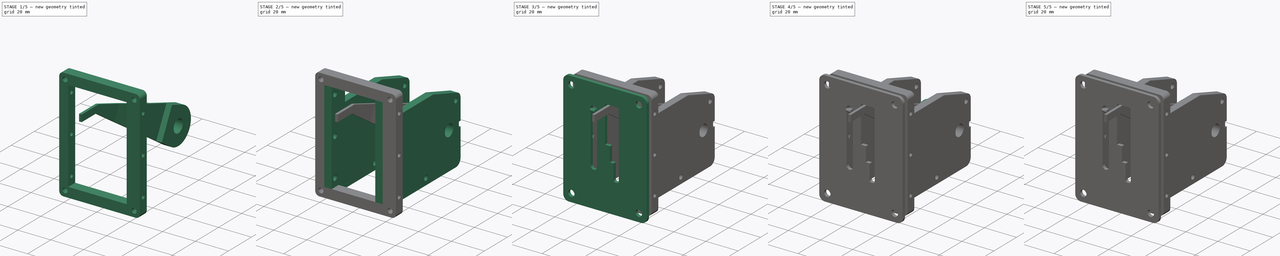
[diagram: build sequence overview — one tinted view per stage of 5, left to right]
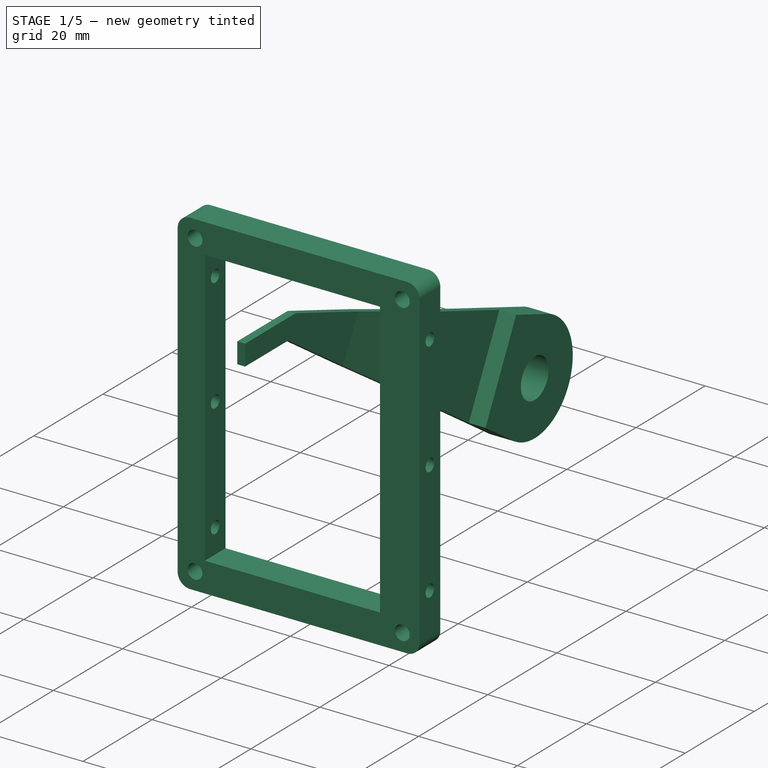
[diagram: stage 1 of 5 — iso view after this stage's code; geometry added in this stage tinted green]
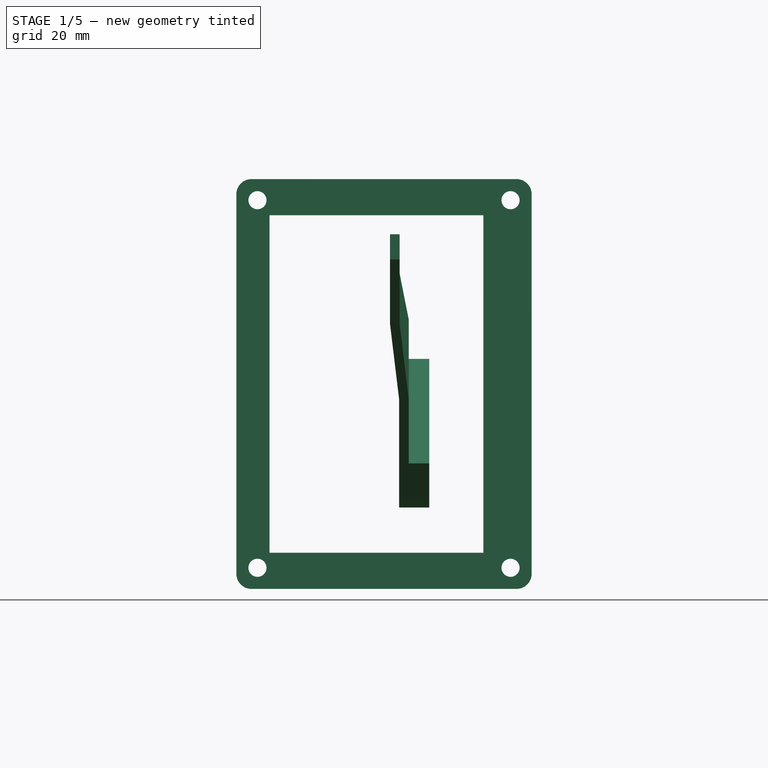
[diagram: stage 1 of 5 — front view after this stage's code; geometry added in this stage tinted green]
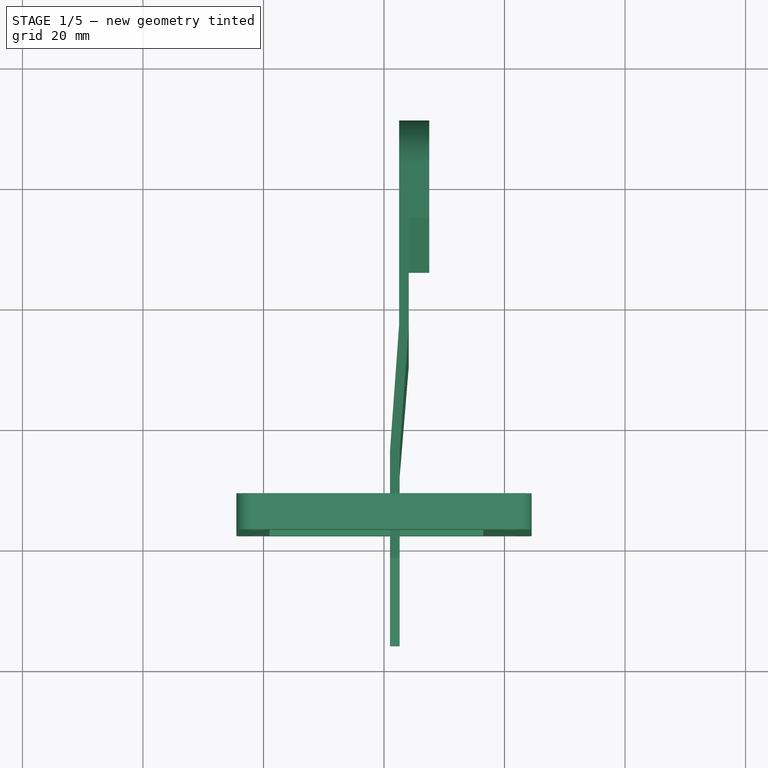
[diagram: stage 1 of 5 — top view after this stage's code; geometry added in this stage tinted green]
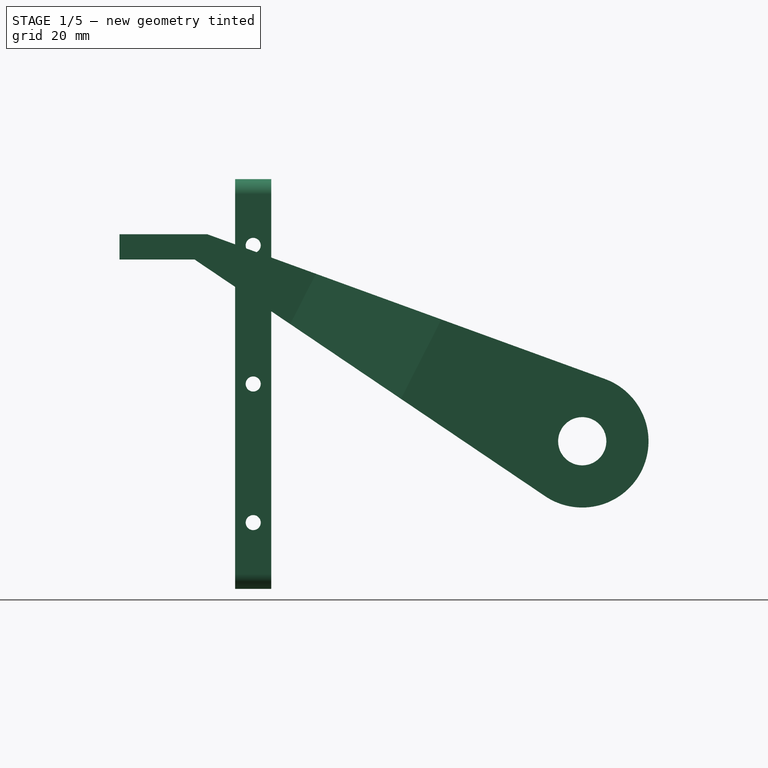
[diagram: stage 1 of 5 — right view after this stage's code; geometry added in this stage tinted green]
FCSTD DOCUMENT  (FreeCAD 0.16R6706 (Git))
Label: flap_assembly
License: All rights reserved
LicenseURL: http://en.wikipedia.org/wiki/All_rights_reserved
objects: Sketcher::SketchObject×17, PartDesign::Pad×13, App::DocumentObjectGroup×8, Part::Part2DObjectPython×5, PartDesign::Pocket×5, Part::Cut×3, Part::MultiFuse×2, Part::MultiCommon×1, Part::Sphere×1
note: 65 computed .brp shape members not serialized (recipe doc carries the construction recipe); baked Part::Feature solids carry a one-line shape summary decoded from their .brp

FEATURE [Sketcher::SketchObject] Sketch001  label="Sketch (lever)"
  Placement = pos=(0,0,0) rot=(0.57735,-0.57735,-0.57735;2.0944rad)
  sketch-geometry (9):
    g0: Circle CenterX=0 CenterY=0 CenterZ=0 NormalX=0 NormalY=0 NormalZ=1 Radius=4
    g1: ArcOfCircle CenterX=0 CenterY=0 CenterZ=0 NormalX=0 NormalY=0 NormalZ=1 Radius=11 StartAngle=1.91986 EndAngle=5.30623
    g2: LineSegment StartX=-3.76222 StartY=10.3366 StartZ=0 EndX=62.1873 EndY=34.3403 EndZ=0
    g3: LineSegment StartX=6.155 StartY=-9.1168 StartZ=0 EndX=64.322 EndY=30.153 EndZ=0
    g4: LineSegment StartX=62.1873 StartY=34.3403 StartZ=0 EndX=76.7873 EndY=34.3403 EndZ=0
    g5: LineSegment StartX=64.322 StartY=30.153 StartZ=0 EndX=76.7873 EndY=30.153 EndZ=0
    g6: LineSegment StartX=76.7873 StartY=30.153 StartZ=0 EndX=76.7873 EndY=34.3403 EndZ=0
    g7: LineSegment [constr] StartX=62.1873 StartY=34.3403 StartZ=0 EndX=64.322 EndY=30.153 EndZ=0
    g8: LineSegment [constr] StartX=0 StartY=0 StartZ=0 EndX=63.2547 EndY=32.2467 EndZ=0
  constraints (25):
    c: Coincident(g0,g-1)
    c: Coincident(g1,g-1)
    c: Coincident(g2,g1)
    c: Coincident(g3,g1)
    c: Coincident(g4,g2)
    c: Coincident(g5,g3)
    c: Coincident(g6,g5)
    c: Coincident(g6,g4)
    c: Parallel(g5,g4)
    c: Perpendicular(g6,g4)
    c: Radius(g0) = 4
    c: Radius(g1) = 11
    c: Tangent(g2,g1)
    c: Tangent(g3,g1)
    c: Angle(g2,g4) = 2.79253
    c: Coincident(g7,g2)
    c: Coincident(g7,g3)
    c: Coincident(g8,g-1)
    c: PointOnObject(g8,g7)
    c: Perpendicular(g7,g8)
    c: Symmetric(g2,g3,g8)
    c: Distance(g4) = 14.6
    c: Distance(g8) = 71
    c: Distance(g7) = 4.7
    c: Horizontal(g4)
FEATURE [PartDesign::Pad] Pad002  label="Pad (lever)"
  Length = 6.5
  Length2 = 100
  Placement = pos=(0,0,0) rot=(0.57735,-0.57735,-0.57735;2.0944rad)
  Reversed = true
  Sketch = -> Sketch001
  Type = 0
FEATURE [Sketcher::SketchObject] Sketch003  label="Sketch (lever cut)"
  Placement = pos=(0,0,0) rot=(-1,0,0;0.471239rad)
  sketch-geometry (16):
    g0: LineSegment StartX=1.5 StartY=18.7893 StartZ=0 EndX=1.5 EndY=-30 EndZ=0
    g1: LineSegment StartX=1.5 StartY=-30 StartZ=0 EndX=0 EndY=-52 EndZ=0
    g2: LineSegment StartX=0 StartY=-52 StartZ=0 EndX=0 EndY=-87.0787 EndZ=0
    g3: LineSegment StartX=0 StartY=-87.0787 StartZ=0 EndX=1.6 EndY=-87.0787 EndZ=0
    g4: LineSegment StartX=1.6 StartY=-87.0787 StartZ=0 EndX=1.6 EndY=-52 EndZ=0
    g5: LineSegment StartX=1.6 StartY=-52 StartZ=0 EndX=3.1 EndY=-30 EndZ=0
    g6: LineSegment StartX=3.1 StartY=-30 StartZ=0 EndX=3.1 EndY=-11 EndZ=0
    g7: LineSegment StartX=3.1 StartY=-11 StartZ=0 EndX=6.5 EndY=-11 EndZ=0
    g8: LineSegment StartX=6.5 StartY=-11 StartZ=0 EndX=6.5 EndY=18.7893 EndZ=0
    g9: LineSegment StartX=6.5 StartY=18.7893 StartZ=0 EndX=1.5 EndY=18.7893 EndZ=0
    g10: LineSegment StartX=-8.15037 StartY=27.8276 StartZ=0 EndX=17.0213 EndY=27.8276 EndZ=0
    g11: LineSegment StartX=17.0213 StartY=27.8276 StartZ=0 EndX=17.0213 EndY=-93.0251 EndZ=0
    g12: LineSegment StartX=17.0213 StartY=-93.0251 StartZ=0 EndX=-8.15037 EndY=-93.0251 EndZ=0
    g13: LineSegment StartX=-8.15037 StartY=-93.0251 StartZ=0 EndX=-8.15037 EndY=27.8276 EndZ=0
    g14: LineSegment [constr] StartX=1.5 StartY=-30 StartZ=0 EndX=3.1 EndY=-30 EndZ=0
    g15: LineSegment [constr] StartX=0 StartY=-52 StartZ=0 EndX=1.6 EndY=-52 EndZ=0
  constraints (41):
    c: Vertical(g0)
    c: DistanceX(g-1,g0) = 1.5
    c: Coincident(g1,g0)
    c: Coincident(g2,g1)
    c: Vertical(g2)
    c: Coincident(g3,g2)
    c: Horizontal(g3)
    c: Coincident(g4,g3)
    c: Vertical(g4)
    c: Coincident(g5,g4)
    c: Coincident(g6,g5)
    c: Vertical(g6)
    c: Coincident(g7,g6)
    c: Coincident(g8,g7)
    c: Vertical(g8)
    c: Coincident(g9,g8)
    c: Coincident(g9,g0)
    c: Horizontal(g9)
    c: Coincident(g10,g11)
    c: Coincident(g11,g12)
    c: Coincident(g12,g13)
    c: Coincident(g13,g10)
    c: Horizontal(g10)
    c: Horizontal(g12)
    c: Vertical(g11)
    c: Vertical(g13)
    c: Horizontal(g7)
    c: DistanceY(g0,g-1) = 30
    c: DistanceY(g1,g-1) = 52
    c: DistanceX(g3,g3) = 1.6
    c: PointOnObject(g2,g-2)
    c: Coincident(g14,g0)
    c: Coincident(g14,g5)
    c: Coincident(g15,g1)
    c: Coincident(g15,g4)
    c: Horizontal(g14)
    c: Horizontal(g15)
    c: Equal(g3,g15)
    c: Equal(g15,g14)
    c: DistanceY(g7,g-1) = 11
    c: DistanceX(g9,g9) = 5
FEATURE [PartDesign::Pad] Pad004  label="Pad (lever cut)"
  Length = 15
  Length2 = 15
  Placement = pos=(0,0,0) rot=(-1,0,0;0.471239rad)
  Sketch = -> Sketch003
  Type = 4
FEATURE [Part::Cut] Cut  label="Cut (lever)"
  Base = -> Pad002
  Placement = pos=(1,0,0) rot=(0,0,1;0rad)
  Tool = -> Pad004
FEATURE [Part::Part2DObjectPython] Clone2D001  label="Export Sketch (left bracket)"  # Draft 2D object (typed FeaturePython)
  Objects = -> [Sketch]
  Placement = pos=(-19,0,0) rot=(0,0,1;0rad)
  Scale = (1,1,1)
FEATURE [Sketcher::SketchObject] Sketch007  label="Sketch (frame bracket)"
  Placement = pos=(0,-57.6,0) rot=(1,0,0;1.5708rad)
  expr: Placement.Base.y = -62 + 4.4
  sketch-geometry (20):
    g0: LineSegment StartX=-22 StartY=43.5 StartZ=0 EndX=22 EndY=43.5 EndZ=0
    g1: LineSegment StartX=24.5 StartY=41 StartZ=0 EndX=24.5 EndY=-22 EndZ=0
    g2: LineSegment StartX=22 StartY=-24.5 StartZ=0 EndX=-22 EndY=-24.5 EndZ=0
    g3: LineSegment StartX=-24.5 StartY=-22 StartZ=0 EndX=-24.5 EndY=41 EndZ=0
    g4: ArcOfCircle CenterX=22 CenterY=41 CenterZ=0 NormalX=0 NormalY=0 NormalZ=1 Radius=2.5 StartAngle=0 EndAngle=1.5708
    g5: ArcOfCircle CenterX=-22 CenterY=41 CenterZ=0 NormalX=0 NormalY=0 NormalZ=1 Radius=2.5 StartAngle=1.5708 EndAngle=3.14159
    g6: ArcOfCircle CenterX=-22 CenterY=-22 CenterZ=0 NormalX=0 NormalY=0 NormalZ=1 Radius=2.5 StartAngle=3.14159 EndAngle=4.71239
    g7: ArcOfCircle CenterX=22 CenterY=-22 CenterZ=0 NormalX=0 NormalY=0 NormalZ=1 Radius=2.5 StartAngle=4.71239 EndAngle=6.28319
    g8: Circle CenterX=-21 CenterY=40 CenterZ=0 NormalX=0 NormalY=0 NormalZ=1 Radius=1.5
    g9: Circle CenterX=21 CenterY=40 CenterZ=0 NormalX=0 NormalY=0 NormalZ=1 Radius=1.5
    g10: Circle CenterX=21 CenterY=-21 CenterZ=0 NormalX=0 NormalY=0 NormalZ=1 Radius=1.5
    g11: Circle CenterX=-21 CenterY=-21 CenterZ=0 NormalX=0 NormalY=0 NormalZ=1 Radius=1.5
    g12: LineSegment [constr] StartX=-21 StartY=40 StartZ=0 EndX=-21 EndY=-21 EndZ=0
    g13: LineSegment [constr] StartX=-21 StartY=-21 StartZ=0 EndX=21 EndY=-21 EndZ=0
    g14: LineSegment [constr] StartX=21 StartY=-21 StartZ=0 EndX=21 EndY=40 EndZ=0
    g15: LineSegment [constr] StartX=21 StartY=40 StartZ=0 EndX=-21 EndY=40 EndZ=0
    g16: LineSegment StartX=-19 StartY=37.5 StartZ=0 EndX=16.5 EndY=37.5 EndZ=0
    g17: LineSegment StartX=16.5 StartY=37.5 StartZ=0 EndX=16.5 EndY=-18.5 EndZ=0
    g18: LineSegment StartX=16.5 StartY=-18.5 StartZ=0 EndX=-19 EndY=-18.5 EndZ=0
    g19: LineSegment StartX=-19 StartY=-18.5 StartZ=0 EndX=-19 EndY=37.5 EndZ=0
  constraints (52):
    c: Horizontal(g0)
    c: Horizontal(g2)
    c: Vertical(g1)
    c: Vertical(g3)
    c: Tangent(g0,g4) = 1.5708
    c: Tangent(g1,g4) = 1.5708
    c: Tangent(g0,g5) = 1.5708
    c: Tangent(g3,g5) = 1.5708
    c: Tangent(g2,g6) = 1.5708
    c: Tangent(g3,g6) = 1.5708
    c: Tangent(g2,g7) = 1.5708
    c: Tangent(g1,g7) = 1.5708
    c: Equal(g7,g6)
    c: Equal(g6,g5)
    c: Equal(g5,g4)
    c: Radius(g4) = 2.5
    c: Radius(g8) = 1.5
    c: Equal(g8,g9)
    c: Equal(g8,g10)
    c: Equal(g8,g11)
    c: Coincident(g12,g8)
    c: Coincident(g12,g11)
    c: Vertical(g12)
    c: Coincident(g13,g11)
    c: Coincident(g13,g10)
    c: Horizontal(g13)
    c: Coincident(g14,g10)
    c: Coincident(g14,g9)
    c: Vertical(g14)
    c: Coincident(g15,g9)
    c: Coincident(g15,g8)
    c: Horizontal(g15)
    c: DistanceY(g8,g0) = 3.5
    c: DistanceX(g3,g8) = 3.5
    c: DistanceY(g2,g11) = 3.5
    c: DistanceX(g10,g1) = 3.5
    c: DistanceX(g11,g-1) = 21
    c: DistanceY(g10,g-1) = 21
    c: DistanceX(g15,g15) = 42
    c: DistanceY(g14,g14) = 61
    c: Coincident(g16,g17)
    c: Coincident(g17,g18)
    c: Coincident(g18,g19)
    c: Coincident(g19,g16)
    c: Horizontal(g16)
    c: Horizontal(g18)
    c: Vertical(g17)
    c: Vertical(g19)
    c: DistanceY(g2,g17) = 6
    c: DistanceY(g16,g0) = 6
    c: DistanceX(g16,g-1) = 19
    c: DistanceX(g-1,g16) = 16.5
FEATURE [PartDesign::Pad] Pad007  label="Pad (frame bracket)"
  Length = 6
  Length2 = 100
  Placement = pos=(0,-57.6,0) rot=(1,0,0;1.5708rad)
  Reversed = true
  Sketch = -> Sketch007
  Type = 0
FEATURE [Sketcher::SketchObject] Sketch009  label="Sketch (frame bracket holes)"
  Placement = pos=(-24.5,-57.6,0) rot=(0.707107,0,-0.707107;3.14159rad)
  Support = -> Pad007 [Face7]
  sketch-geometry (5):
    g0: Circle CenterX=-32.5 CenterY=-3 CenterZ=0 NormalX=0 NormalY=0 NormalZ=1 Radius=1.25
    g1: Circle CenterX=-9.5 CenterY=-3 CenterZ=0 NormalX=0 NormalY=0 NormalZ=1 Radius=1.25
    g2: Circle CenterX=13.5 CenterY=-3 CenterZ=0 NormalX=0 NormalY=0 NormalZ=1 Radius=1.25
    g3: LineSegment [constr] StartX=-32.5 StartY=-3 StartZ=0 EndX=-9.5 EndY=-3 EndZ=0
    g4: LineSegment [constr] StartX=-9.5 StartY=-3 StartZ=0 EndX=13.5 EndY=-3 EndZ=0
  constraints (13):
    c: DistanceX(g-1,g2) = 13.5
    c: DistanceX(g0,g-1) = 32.5
    c: Equal(g0,g1)
    c: Equal(g1,g2)
    c: Radius(g2) = 1.25
    c: Coincident(g3,g0)
    c: Coincident(g3,g1)
    c: Horizontal(g3)
    c: Coincident(g4,g1)
    c: Horizontal(g4)
    c: Coincident(g2,g4)
    c: Equal(g3,g4)
    c: DistanceY(g2,g-1) = 3
FEATURE [PartDesign::Pocket] Pocket  label="Pocket (frame bracket holes)"
  Length = 5
  Placement = pos=(0,-57.6,0) rot=(1,0,0;1.5708rad)
  Sketch = -> Sketch009
  Type = 1
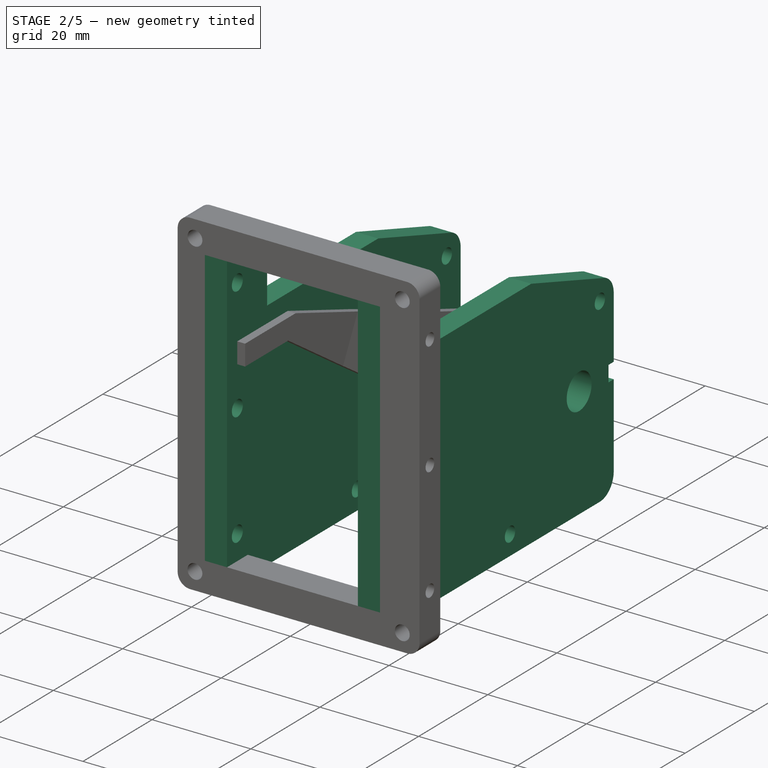
[diagram: stage 2 of 5 — iso view after this stage's code; geometry added in this stage tinted green]
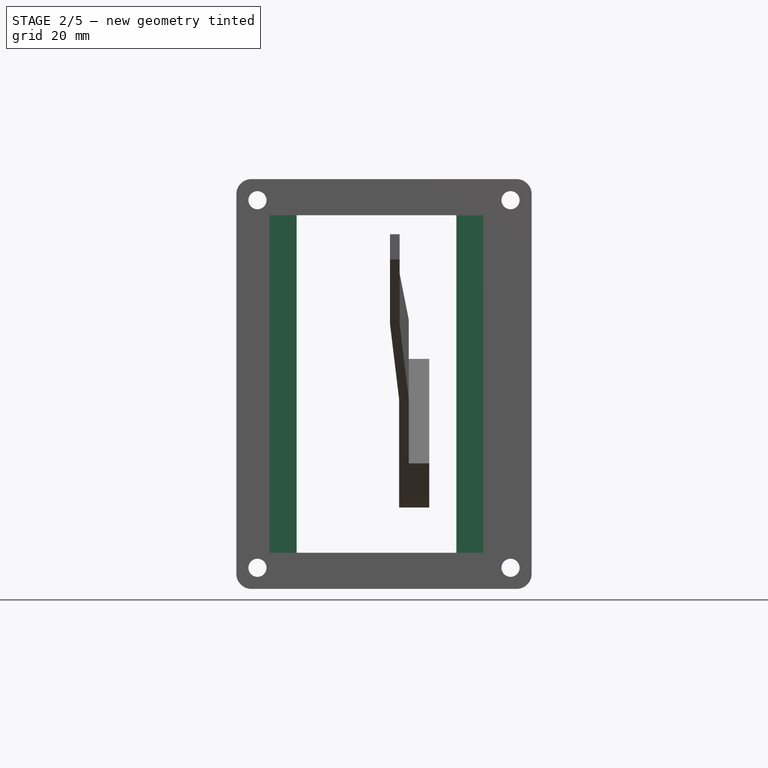
[diagram: stage 2 of 5 — front view after this stage's code; geometry added in this stage tinted green]
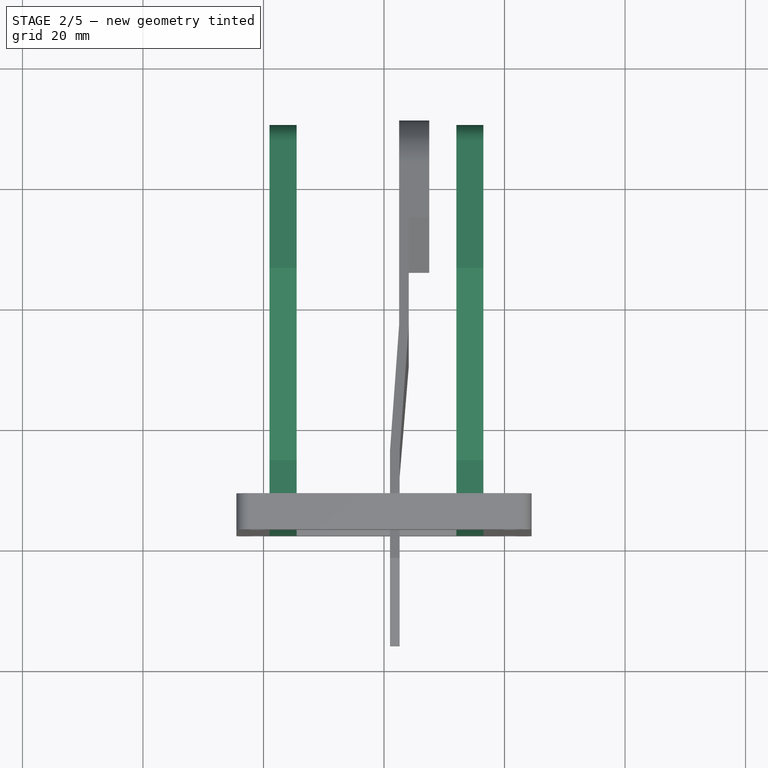
[diagram: stage 2 of 5 — top view after this stage's code; geometry added in this stage tinted green]
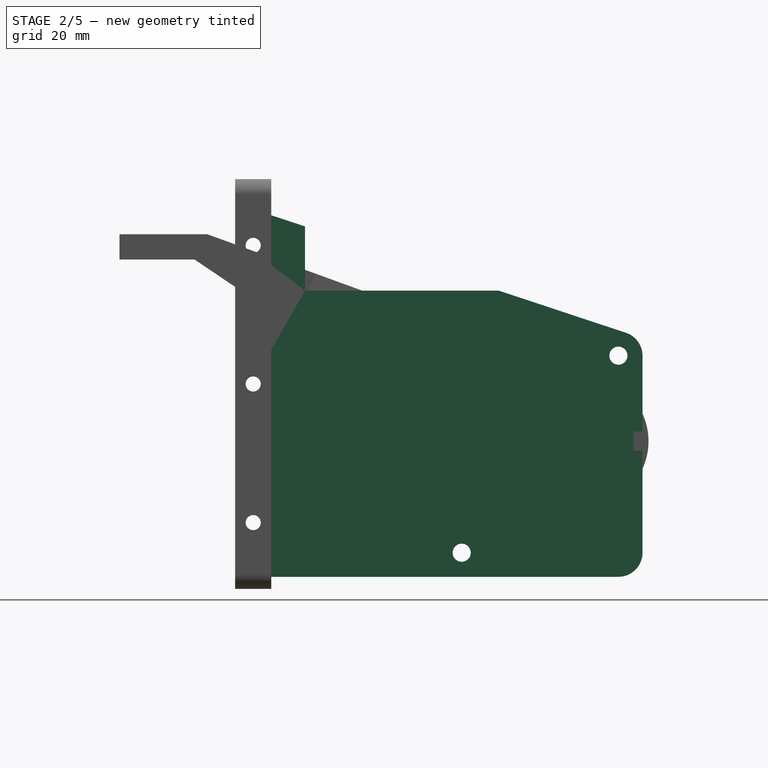
[diagram: stage 2 of 5 — right view after this stage's code; geometry added in this stage tinted green]
FEATURE [Sketcher::SketchObject] Sketch  label="Sketch (left bracket)"
  Placement = pos=(-19,0,0) rot=(0.57735,-0.57735,-0.57735;2.0944rad)
  expr: Constraints[13] = 62 - 4.4
  sketch-geometry (24):
    g0: LineSegment StartX=-10 StartY=14.203 StartZ=0 EndX=-10 EndY=-18.5 EndZ=0
    g1: LineSegment StartX=57.6 StartY=37.5 StartZ=0 EndX=57.6 EndY=-18.5 EndZ=0
    g2: ArcOfCircle CenterX=-6 CenterY=14.203 CenterZ=0 NormalX=0 NormalY=0 NormalZ=1 Radius=4 StartAngle=1.89072 EndAngle=3.14159
    g3: ArcOfCircle CenterX=-6 CenterY=-18.5 CenterZ=0 NormalX=0 NormalY=0 NormalZ=1 Radius=4 StartAngle=3.14159 EndAngle=4.71239
    g4: LineSegment StartX=57.6 StartY=37.5 StartZ=0 EndX=51.6 EndY=37.5 EndZ=0
    g5: LineSegment StartX=57.6 StartY=-18.5 StartZ=0 EndX=51.6 EndY=-18.5 EndZ=0
    g6: Circle CenterX=54.6021 CenterY=32.4976 CenterZ=0 NormalX=0 NormalY=0 NormalZ=1 Radius=1.6
    g7: Circle CenterX=54.6 CenterY=-13.4989 CenterZ=0 NormalX=0 NormalY=0 NormalZ=1 Radius=1.6
    g8: Circle CenterX=54.6021 CenterY=9.49937 CenterZ=0 NormalX=0 NormalY=0 NormalZ=1 Radius=1.6
    g9: LineSegment [constr] StartX=51.6002 StartY=37.4976 StartZ=0 EndX=54.6021 EndY=32.4976 EndZ=0
    g10: LineSegment [constr] StartX=54.6021 StartY=32.4976 StartZ=0 EndX=57.6 EndY=37.5 EndZ=0
    g11: LineSegment [constr] StartX=51.6 StartY=-18.5 StartZ=0 EndX=54.6 EndY=-13.4989 EndZ=0
    g12: LineSegment [constr] StartX=54.6 StartY=-13.4989 StartZ=0 EndX=57.6 EndY=-18.5 EndZ=0
    g13: LineSegment [constr] StartX=54.6021 StartY=32.4976 StartZ=0 EndX=54.6021 EndY=9.49937 EndZ=0
    g14: LineSegment [constr] StartX=54.6021 StartY=9.49937 StartZ=0 EndX=54.6 EndY=-13.4989 EndZ=0
    g15: Circle CenterX=-6 CenterY=14.203 CenterZ=0 NormalX=0 NormalY=0 NormalZ=1 Radius=1.5
    g16: Circle CenterX=20 CenterY=-18.5 CenterZ=0 NormalX=0 NormalY=0 NormalZ=1 Radius=1.5
    g17: LineSegment StartX=51.6 StartY=-18.5 StartZ=0 EndX=51.6 EndY=-22.5 EndZ=0
    g18: LineSegment StartX=51.6 StartY=-22.5 StartZ=0 EndX=-6 EndY=-22.5 EndZ=0
    g19: LineSegment StartX=46 StartY=35.6447 StartZ=0 EndX=46 EndY=25 EndZ=0
    g20: LineSegment StartX=46 StartY=25 StartZ=0 EndX=13.8705 EndY=25 EndZ=0
    g21: LineSegment StartX=-7.25799 StartY=18 StartZ=0 EndX=13.8705 EndY=25 EndZ=0
    g22: LineSegment StartX=51.6 StartY=37.5 StartZ=0 EndX=46 EndY=35.6447 EndZ=0
    g23: LineSegment [constr] StartX=46 StartY=35.6447 StartZ=0 EndX=13.8705 EndY=25 EndZ=0
  constraints (63):
    c: Vertical(g0)
    c: Vertical(g1)
    c: Tangent(g0,g2) = -1.5708
    c: Tangent(g0,g3) = -1.5708
    c: Equal(g2,g3)
    c: DistanceX(g0,g-1) = 10
    c: DistanceY(g-1,g4) = 37.5
    c: Coincident(g4,g1)
    c: Coincident(g5,g1)
    c: Equal(g5,g4)
    c: DistanceX(g4,g4) = 6
    c: Horizontal(g4)
    c: Radius(g3) = 4
    c: DistanceX(g-1,g1) = 57.6
    c: Equal(g6,g8)
    c: Equal(g8,g7)
    c: Radius(g6) = 1.6
    c: Coincident(g9,g6)
    c: Coincident(g10,g6)
    c: Coincident(g10,g1)
    c: Coincident(g11,g7)
    c: Coincident(g12,g7)
    c: Coincident(g12,g1)
    c: Horizontal(g5)
    c: Coincident(g13,g6)
    c: Coincident(g13,g8)
    c: Vertical(g13)
    c: Coincident(g14,g8)
    c: Coincident(g14,g7)
    c: Equal(g13,g14)
    c: Equal(g10,g9)
    c: Equal(g9,g11)
    c: Equal(g11,g12)
    c: DistanceY(g9,g9) = 5
    c: Coincident(g15,g2)
    c: Radius(g15) = 1.5
    c: Equal(g15,g16)
    c: DistanceX(g-1,g16) = 20
    c: Coincident(g17,g5)
    c: Vertical(g17)
    c: DistanceY(g17,g17) = 4
    c: Coincident(g18,g17)
    c: Coincident(g18,g3)
    c: Horizontal(g18)
    c: Tangent(g18,g3)
    c: DistanceY(g3,g16) = 4
    c: Coincident(g11,g5)
    c: DistanceY(g17,g-1) = 22.5
    c: Vertical(g19)
    c: Coincident(g20,g19)
    c: Horizontal(g20)
    c: DistanceX(g0,g19) = 56
    c: DistanceY(g19,g4) = 12.5
    c: Coincident(g21,g2)
    c: Coincident(g22,g4)
    c: Coincident(g23,g22)
    c: Coincident(g23,g21)
    c: Parallel(g22,g23)
    c: Parallel(g23,g21)
    c: Tangent(g21,g2)
    c: DistanceY(g3,g2) = 40.5
    c: Coincident(g20,g21)
    c: Coincident(g19,g22)
FEATURE [PartDesign::Pad] Pad  label="Pad (left bracket)"
  Length = 4.5
  Length2 = 100
  Placement = pos=(-19,0,0) rot=(0.57735,-0.57735,-0.57735;2.0944rad)
  Reversed = true
  Sketch = -> Sketch
  Type = 0
FEATURE [Part::Part2DObjectPython] Clone2D  label="Clone Sketch (right bracket)"  # Draft 2D object (typed FeaturePython)
  Objects = -> [Sketch]
  Placement = pos=(16.5,0,0) rot=(0.57735,-0.57735,-0.57735;2.0944rad)
  Scale = (1,1,1)
FEATURE [PartDesign::Pad] Pad001  label="Pad (right bracket)"
  Length = 4.5
  Length2 = 100
  Placement = pos=(16.5,0,0) rot=(0.57735,-0.57735,-0.57735;2.0944rad)
  Sketch = -> Clone2D
  Type = 0
FEATURE [Sketcher::SketchObject] Sketch004  label="Sketch (servo)"
  Placement = pos=(-19,0,0) rot=(0.57735,-0.57735,-0.57735;2.0944rad)
  sketch-geometry (10):
    g0: LineSegment StartX=12 StartY=20 StartZ=0 EndX=24 EndY=20 EndZ=0
    g1: LineSegment StartX=24 StartY=20 StartZ=0 EndX=24 EndY=-3 EndZ=0
    g2: LineSegment StartX=24 StartY=-3 StartZ=0 EndX=12 EndY=-3 EndZ=0
    g3: LineSegment StartX=12 StartY=-3 StartZ=0 EndX=12 EndY=20 EndZ=0
    g4: Circle CenterX=18 CenterY=22.5 CenterZ=0 NormalX=0 NormalY=0 NormalZ=1 Radius=0.8
    g5: Circle CenterX=18 CenterY=-5.5 CenterZ=0 NormalX=0 NormalY=0 NormalZ=1 Radius=0.8
    g6: LineSegment [constr] StartX=18 StartY=22.5 StartZ=0 EndX=12 EndY=20 EndZ=0
    g7: LineSegment [constr] StartX=18 StartY=22.5 StartZ=0 EndX=24 EndY=20 EndZ=0
    g8: LineSegment [constr] StartX=12 StartY=-3 StartZ=0 EndX=18 EndY=-5.5 EndZ=0
    g9: LineSegment [constr] StartX=18 StartY=-5.5 StartZ=0 EndX=24 EndY=-3 EndZ=0
  constraints (26):
    c: Coincident(g0,g1)
    c: Coincident(g1,g2)
    c: Coincident(g2,g3)
    c: Coincident(g3,g0)
    c: Horizontal(g0)
    c: Horizontal(g2)
    c: Vertical(g1)
    c: Vertical(g3)
    c: DistanceX(g0,g0) = 12
    c: DistanceY(g1,g1) = 23
    c: Equal(g4,g5)
    c: Radius(g4) = 0.8
    c: DistanceY(g0,g4) = 2.5
    c: DistanceY(g5,g1) = 2.5
    c: Coincident(g6,g4)
    c: Coincident(g6,g0)
    c: Coincident(g7,g4)
    c: Coincident(g7,g0)
    c: Equal(g7,g6)
    c: Coincident(g8,g2)
    c: Coincident(g8,g5)
    c: Coincident(g9,g5)
    c: Coincident(g9,g1)
    c: Equal(g9,g8)
    c: DistanceY(g-1,g0) = 20
    c: DistanceX(g-1,g2) = 12
FEATURE [PartDesign::Pad] Pad005  label="Pad (servo)"
  Length = 4.5
  Length2 = 100
  Placement = pos=(-19,0,0) rot=(0.57735,-0.57735,-0.57735;2.0944rad)
  Reversed = true
  Sketch = -> Sketch004
  Type = 0
FEATURE [Sketcher::SketchObject] Sketch005  label="Sketch (pot)"
  Placement = pos=(16.5,0,0) rot=(0.57735,0.57735,0.57735;2.0944rad)
  sketch-geometry (5):
    g0: Circle CenterX=0 CenterY=0 CenterZ=0 NormalX=0 NormalY=0 NormalZ=1 Radius=3.6
    g1: LineSegment StartX=8.5 StartY=1.6 StartZ=0 EndX=10 EndY=1.6 EndZ=0
    g2: LineSegment StartX=10 StartY=1.6 StartZ=0 EndX=10 EndY=-1.6 EndZ=0
    g3: LineSegment StartX=10 StartY=-1.6 StartZ=0 EndX=8.5 EndY=-1.6 EndZ=0
    g4: LineSegment StartX=8.5 StartY=-1.6 StartZ=0 EndX=8.5 EndY=1.6 EndZ=0
  constraints (14):
    c: Coincident(g0,g-1)
    c: Radius(g0) = 3.6
    c: Coincident(g1,g2)
    c: Coincident(g2,g3)
    c: Coincident(g3,g4)
    c: Coincident(g4,g1)
    c: Horizontal(g1)
    c: Horizontal(g3)
    c: Vertical(g2)
    c: Vertical(g4)
    c: DistanceY(g4,g4) = 3.2
    c: DistanceX(g1,g1) = 1.5
    c: Symmetric(g1,g2,g-1)
    c: DistanceX(g-1,g1) = 8.5
FEATURE [PartDesign::Pad] Pad006  label="Pad (pot)"
  Length = 4.5
  Length2 = 100
  Placement = pos=(16.5,0,0) rot=(0.57735,0.57735,0.57735;2.0944rad)
  Reversed = true
  Sketch = -> Sketch005
  Type = 0
FEATURE [Part::Cut] Cut002  label="Cut (right bracket)"
  Base = -> Pad001
  Tool = -> Pad006
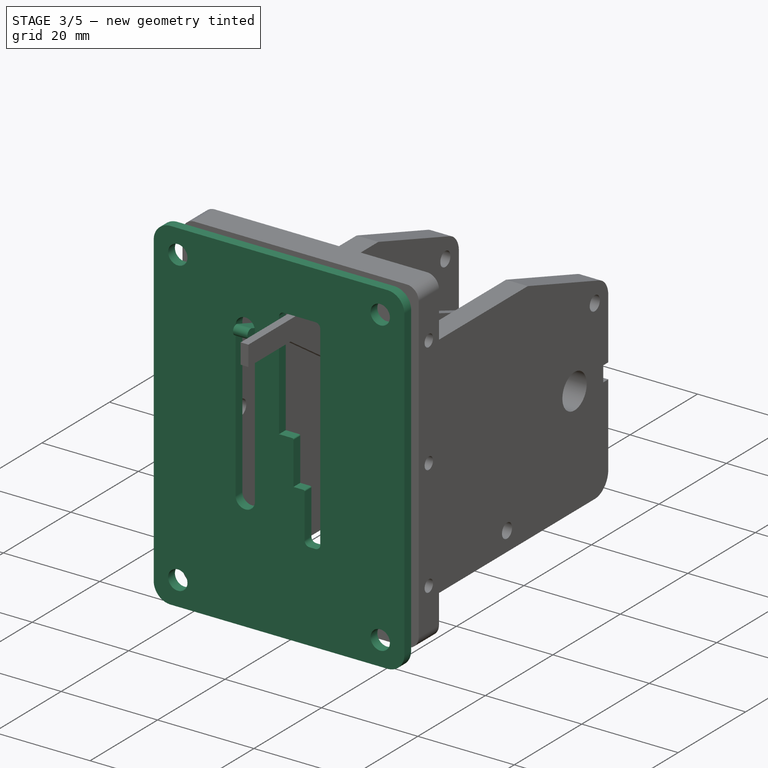
[diagram: stage 3 of 5 — iso view after this stage's code; geometry added in this stage tinted green]
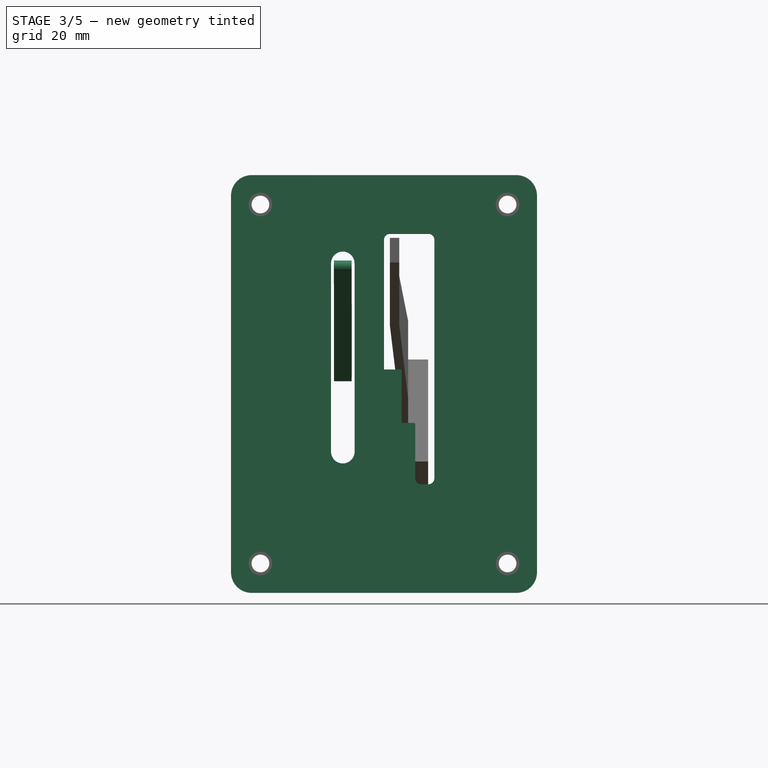
[diagram: stage 3 of 5 — front view after this stage's code; geometry added in this stage tinted green]
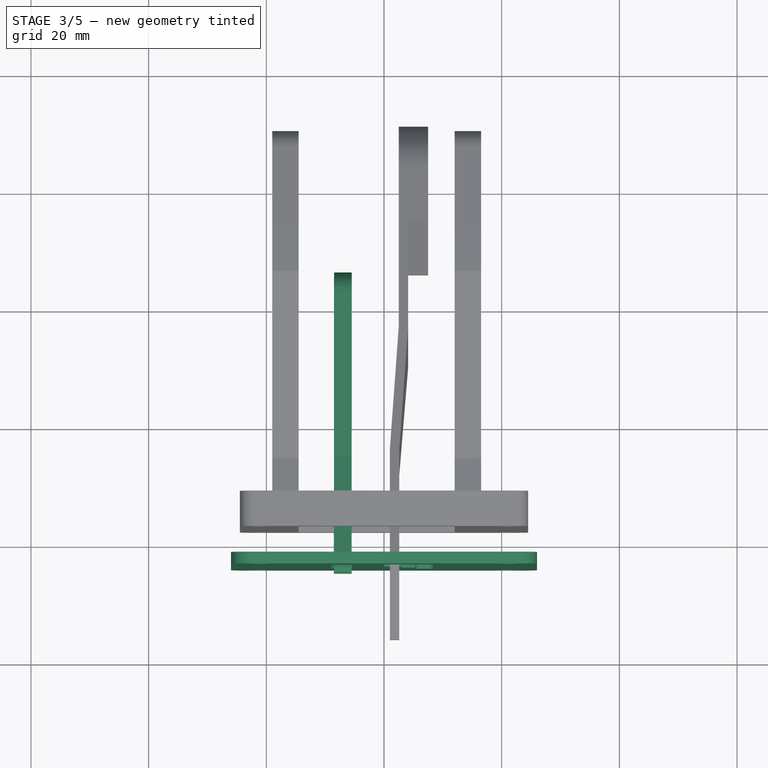
[diagram: stage 3 of 5 — top view after this stage's code; geometry added in this stage tinted green]
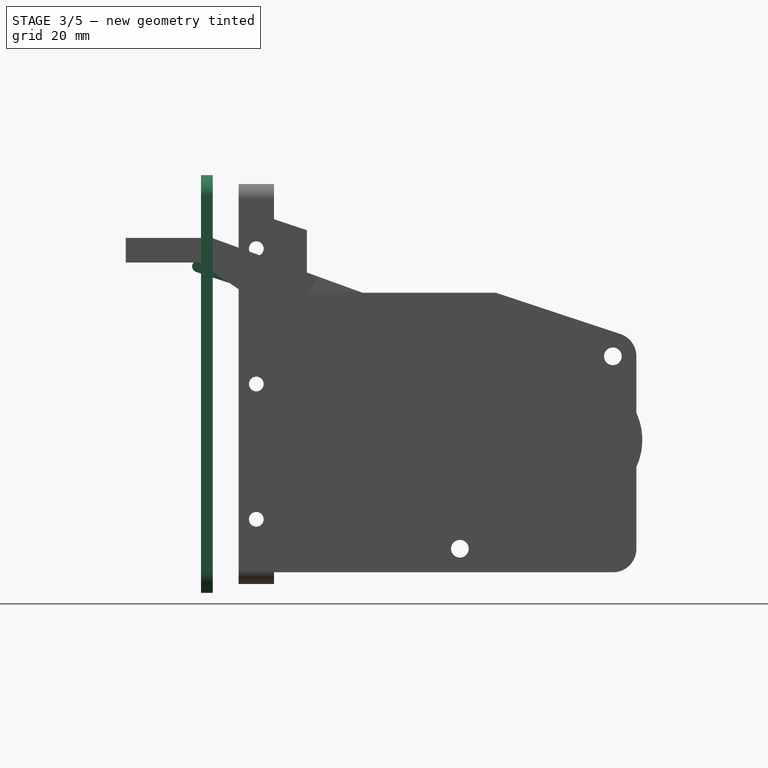
[diagram: stage 3 of 5 — right view after this stage's code; geometry added in this stage tinted green]
FEATURE [Sketcher::SketchObject] Sketch002  label="Sketch (face plate)"
  Placement = pos=(0,-62,0) rot=(1,0,0;1.5708rad)
  sketch-geometry (36):
    g0: LineSegment StartX=-22.5 StartY=45 StartZ=0 EndX=22.5 EndY=45 EndZ=0
    g1: LineSegment StartX=26 StartY=41.5 StartZ=0 EndX=26 EndY=-22.5 EndZ=0
    g2: LineSegment StartX=22.5 StartY=-26 StartZ=0 EndX=-22.5 EndY=-26 EndZ=0
    g3: LineSegment StartX=-26 StartY=-22.5 StartZ=0 EndX=-26 EndY=41.5 EndZ=0
    g4: ArcOfCircle CenterX=22.5 CenterY=41.5 CenterZ=0 NormalX=0 NormalY=0 NormalZ=1 Radius=3.5 StartAngle=0 EndAngle=1.5708
    g5: ArcOfCircle CenterX=-22.5 CenterY=41.5 CenterZ=0 NormalX=0 NormalY=0 NormalZ=1 Radius=3.5 StartAngle=1.5708 EndAngle=3.14159
    g6: ArcOfCircle CenterX=-22.5 CenterY=-22.5 CenterZ=0 NormalX=0 NormalY=0 NormalZ=1 Radius=3.5 StartAngle=3.14159 EndAngle=4.71239
    g7: ArcOfCircle CenterX=22.5 CenterY=-22.5 CenterZ=0 NormalX=0 NormalY=0 NormalZ=1 Radius=3.5 StartAngle=4.71239 EndAngle=6.28319
    g8: ArcOfCircle CenterX=-7 CenterY=30 CenterZ=0 NormalX=0 NormalY=0 NormalZ=1 Radius=2 StartAngle=0 EndAngle=3.14159
    g9: ArcOfCircle CenterX=-7 CenterY=-2 CenterZ=0 NormalX=0 NormalY=0 NormalZ=1 Radius=2 StartAngle=3.14159 EndAngle=6.28319
    g10: LineSegment StartX=-9 StartY=30 StartZ=0 EndX=-9 EndY=-2 EndZ=0
    g11: LineSegment StartX=-5 StartY=30 StartZ=0 EndX=-5 EndY=-2 EndZ=0
    g12: LineSegment [constr] StartX=-7 StartY=30 StartZ=0 EndX=-7 EndY=14 EndZ=0
    g13: LineSegment [constr] StartX=-7 StartY=14 StartZ=0 EndX=-7 EndY=-2 EndZ=0
    g14: LineSegment StartX=1 StartY=35 StartZ=0 EndX=7.555 EndY=35 EndZ=0
    g15: LineSegment StartX=8.555 StartY=34 StartZ=0 EndX=8.555 EndY=-6.542 EndZ=0
    g16: LineSegment StartX=7.555 StartY=-7.542 StartZ=0 EndX=6.313 EndY=-7.542 EndZ=0
    g17: LineSegment StartX=5.313 StartY=-6.542 StartZ=0 EndX=5.313 EndY=2.633 EndZ=0
    g18: LineSegment StartX=5.063 StartY=2.883 StartZ=0 EndX=3 EndY=2.883 EndZ=0
    g19: LineSegment StartX=3 StartY=2.883 StartZ=0 EndX=3 EndY=11.719 EndZ=0
    g20: LineSegment StartX=2.75 StartY=11.969 StartZ=0 EndX=0 EndY=11.969 EndZ=0
    g21: LineSegment StartX=0 StartY=11.969 StartZ=0 EndX=0 EndY=34 EndZ=0
    g22: ArcOfCircle CenterX=7.555 CenterY=34 CenterZ=0 NormalX=0 NormalY=0 NormalZ=1 Radius=1 StartAngle=0 EndAngle=1.5708
    g23: ArcOfCircle CenterX=1 CenterY=34 CenterZ=0 NormalX=0 NormalY=0 NormalZ=1 Radius=1 StartAngle=1.5708 EndAngle=3.14159
    g24: ArcOfCircle CenterX=5.063 CenterY=2.633 CenterZ=0 NormalX=0 NormalY=0 NormalZ=1 Radius=0.25 StartAngle=0 EndAngle=1.5708
    g25: ArcOfCircle CenterX=6.313 CenterY=-6.542 CenterZ=0 NormalX=0 NormalY=0 NormalZ=1 Radius=1 StartAngle=3.14159 EndAngle=4.71239
    g26: ArcOfCircle CenterX=7.555 CenterY=-6.542 CenterZ=0 NormalX=0 NormalY=0 NormalZ=1 Radius=1 StartAngle=4.71239 EndAngle=6.28319
    g27: ArcOfCircle CenterX=2.75 CenterY=11.719 CenterZ=0 NormalX=0 NormalY=0 NormalZ=1 Radius=0.25 StartAngle=0 EndAngle=1.5708
    g28: Circle CenterX=-21 CenterY=40 CenterZ=0 NormalX=0 NormalY=0 NormalZ=1 Radius=2
    g29: Circle CenterX=21 CenterY=40 CenterZ=0 NormalX=0 NormalY=0 NormalZ=1 Radius=2
    g30: Circle CenterX=21 CenterY=-21 CenterZ=0 NormalX=0 NormalY=0 NormalZ=1 Radius=2
    g31: Circle CenterX=-21 CenterY=-21 CenterZ=0 NormalX=0 NormalY=0 NormalZ=1 Radius=2
    g32: LineSegment [constr] StartX=-21 StartY=40 StartZ=0 EndX=-21 EndY=-21 EndZ=0
    g33: LineSegment [constr] StartX=-21 StartY=-21 StartZ=0 EndX=21 EndY=-21 EndZ=0
    g34: LineSegment [constr] StartX=21 StartY=-21 StartZ=0 EndX=21 EndY=40 EndZ=0
    g35: LineSegment [constr] StartX=21 StartY=40 StartZ=0 EndX=-21 EndY=40 EndZ=0
  constraints (91):
    c: Horizontal(g0)
    c: Horizontal(g2)
    c: Vertical(g1)
    c: Vertical(g3)
    c: Tangent(g0,g4) = 1.5708
    c: Tangent(g1,g4) = 1.5708
    c: Tangent(g0,g5) = 1.5708
    c: Tangent(g3,g5) = 1.5708
    c: Tangent(g2,g6) = 1.5708
    c: Tangent(g3,g6) = 1.5708
    c: Tangent(g2,g7) = 1.5708
    c: Tangent(g1,g7) = 1.5708
    c: Equal(g7,g6)
    c: Equal(g6,g5)
    c: Equal(g5,g4)
    c: Radius(g4) = 3.5
    c: DistanceY(g2,g0) = 71
    c: DistanceX(g3,g1) = 52
    c: Tangent(g8,g11) = 1.5708
    c: Tangent(g8,g10) = -1.5708
    c: Tangent(g10,g9) = -1.5708
    c: Tangent(g11,g9) = 1.5708
    c: Vertical(g10)
    c: Equal(g8,g9)
    c: Radius(g8) = 2
    c: DistanceY(g9,g8) = 32
    c: DistanceX(g3,g8) = 19
    c: Coincident(g12,g8)
    c: Vertical(g12)
    c: Coincident(g13,g12)
    c: Coincident(g13,g9)
    c: Equal(g12,g13)
    c: DistanceY(g2,g12) = 40
    c: Horizontal(g14)
    c: Vertical(g15)
    c: Vertical(g17)
    c: Coincident(g19,g18)
    c: Vertical(g19)
    c: Coincident(g21,g20)
    c: Vertical(g21)
    c: Horizontal(g20)
    c: Horizontal(g18)
    c: Horizontal(g16)
    c: Tangent(g14,g22) = 1.5708
    c: Tangent(g15,g22) = 1.5708
    c: Tangent(g14,g23) = 1.5708
    c: Tangent(g21,g23) = 1.5708
    c: Tangent(g18,g24) = -1.5708
    c: Tangent(g17,g24) = -1.5708
    c: Tangent(g17,g25) = 1.5708
    c: Tangent(g16,g25) = 1.5708
    c: Tangent(g15,g26) = 1.5708
    c: Tangent(g16,g26) = 1.5708
    c: Radius(g26) = 1
    c: Equal(g26,g25)
    c: Equal(g26,g22)
    c: Equal(g26,g23)
    c: PointOnObject(g21,g-2)
    c: Tangent(g20,g27) = -1.5708
    c: Tangent(g19,g27) = -1.5708
    c: Radius(g27) = 0.25
    c: Equal(g27,g24)
    c: DistanceY(g2,g14) = 61
    c: DistanceY(g2,g20) = 37.969
    c: DistanceY(g2,g18) = 28.883
    c: DistanceY(g2,g16) = 18.458
    c: DistanceX(g3,g18) = 29
    c: DistanceX(g3,g17) = 31.313
    c: DistanceX(g3,g15) = 34.555
    c: DistanceX(g3,g20) = 26
    c: Radius(g28) = 2
    c: Equal(g28,g29)
    c: Equal(g28,g30)
    c: Equal(g28,g31)
    c: Coincident(g32,g28)
    c: Coincident(g32,g31)
    c: Vertical(g32)
    c: Coincident(g33,g31)
    c: Coincident(g33,g30)
    c: Horizontal(g33)
    c: Coincident(g34,g30)
    c: Coincident(g34,g29)
    c: Vertical(g34)
    c: Coincident(g35,g29)
    c: Coincident(g35,g28)
    c: Horizontal(g35)
    c: DistanceY(g28,g0) = 5
    c: DistanceX(g3,g28) = 5
    c: DistanceY(g2,g31) = 5
    c: DistanceX(g30,g1) = 5
    c: DistanceY(g-1,g14) = 35
FEATURE [PartDesign::Pad] Pad003  label="Pad (face plate)"
  Length = 2
  Length2 = 100
  Placement = pos=(0,-62,0) rot=(1,0,0;1.5708rad)
  Sketch = -> Sketch002
  Type = 0
FEATURE [Part::Cut] Cut001  label="Cut (left bracket)"
  Base = -> Pad
  Tool = -> Pad005
FEATURE [Sketcher::SketchObject] Sketch018  label="Sketch (position arm)"
  Placement = pos=(-7,0,0) rot=(-0.576467,0.576467,0.579113;4.18879rad)
  sketch-geometry (7):
    g0: ArcOfCircle CenterX=18 CenterY=14 CenterZ=0 NormalX=0 NormalY=0 NormalZ=1 Radius=4 StartAngle=1.79087 EndAngle=5.14011
    g1: LineSegment StartX=17.1268 StartY=17.9035 StartZ=0 EndX=45.1738 EndY=24.1777 EndZ=0
    g2: LineSegment StartX=19.6592 StartY=10.3603 StartZ=0 EndX=45.8103 EndY=22.2817 EndZ=0
    g3: LineSegment StartX=45.1738 StartY=24.1777 StartZ=0 EndX=64.1338 EndY=30.543 EndZ=0
    g4: ArcOfCircle CenterX=64.4521 CenterY=29.595 CenterZ=0 NormalX=0 NormalY=0 NormalZ=1 Radius=1 StartAngle=5.03629 EndAngle=8.17788
    g5: LineSegment StartX=64.7704 StartY=28.6469 StartZ=0 EndX=45.8103 EndY=22.2817 EndZ=0
    g6: LineSegment [constr] StartX=18 StartY=14 StartZ=0 EndX=64.4521 EndY=29.595 EndZ=0
  constraints (21):
    c: Coincident(g1,g0)
    c: Coincident(g2,g0)
    c: Coincident(g3,g1)
    c: Coincident(g4,g3)
    c: Coincident(g5,g4)
    c: Coincident(g5,g2)
    c: Tangent(g4,g5)
    c: Radius(g4) = 1
    c: Tangent(g2,g0)
    c: Tangent(g1,g0)
    c: Radius(g0) = 4
    c: Equal(g3,g5)
    c: Coincident(g6,g4)
    c: Parallel(g3,g5)
    c: Parallel(g5,g6)
    c: Distance(g6) = 49
    c: Distance(g3) = 20
    c: Coincident(g0,g6)
    c: DistanceX(g-1,g0) = 18
    c: DistanceY(g-1,g0) = 14
    c: Equal(g1,g2)
FEATURE [PartDesign::Pad] Pad013  label="Pad (position arm)"
  Length = 1.5
  Length2 = 1.5
  Placement = pos=(-7,0,0) rot=(-0.576467,0.576467,0.579113;4.18879rad)
  Sketch = -> Sketch018
  Type = 4
FEATURE [Sketcher::SketchObject] Sketch019  label="Sketch (servo shaft mount)"
  ExternalGeometry = -> [Pad013]
  Placement = pos=(-8.49999,0.0022862,0.0045864) rot=(-0.576467,0.576467,0.579113;4.18879rad)
  Support = -> Pad013 [Face8]
  sketch-geometry (1):
    g0: Circle CenterX=18 CenterY=14 CenterZ=0 NormalX=0 NormalY=0 NormalZ=1 Radius=2.5
  constraints (2):
    c: Coincident(g0,g-3)
    c: Radius(g0) = 2.5
FEATURE [PartDesign::Pocket] Pocket003  label="Pocket (servo shaft mount)"
  Length = 2
  Placement = pos=(-7,0,0) rot=(-0.576467,0.576467,0.579113;4.18879rad)
  Sketch = -> Sketch019
  Type = 0
FEATURE [Sketcher::SketchObject] Sketch020  label="Sketch (servo screw hole)"
  ExternalGeometry = -> [Pocket003]
  Placement = pos=(-6.5,-0.000762068,-0.0015288) rot=(-0.576467,0.576467,0.579113;4.18879rad)
  Support = -> Pocket003 [Face10]
  sketch-geometry (1):
    g0: Circle CenterX=18 CenterY=14 CenterZ=0 NormalX=0 NormalY=0 NormalZ=1 Radius=1.1
  constraints (2):
    c: Coincident(g0,g-3)
    c: Radius(g0) = 1.1
FEATURE [PartDesign::Pocket] Pocket004  label="Pocket (servo screw hole)"
  Length = 1
  Placement = pos=(-7,0,0) rot=(-0.576467,0.576467,0.579113;4.18879rad)
  Sketch = -> Sketch020
  Type = 0
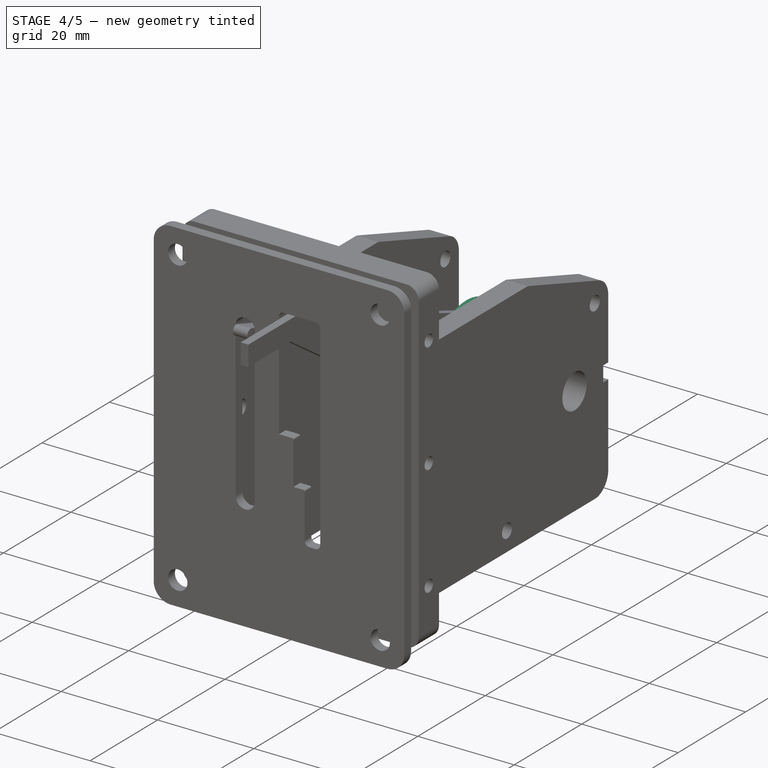
[diagram: stage 4 of 5 — iso view after this stage's code; geometry added in this stage tinted green]
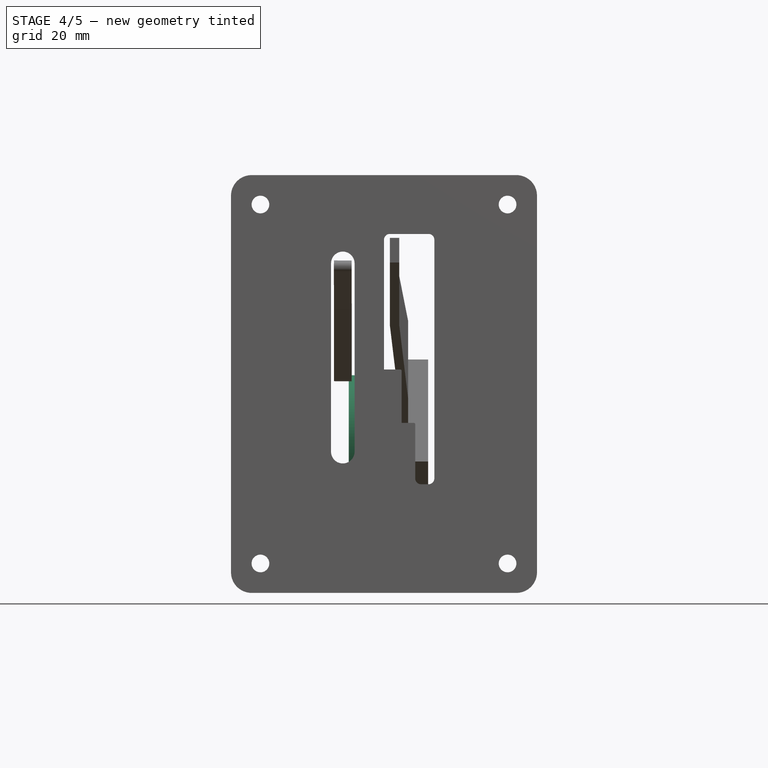
[diagram: stage 4 of 5 — front view after this stage's code; geometry added in this stage tinted green]
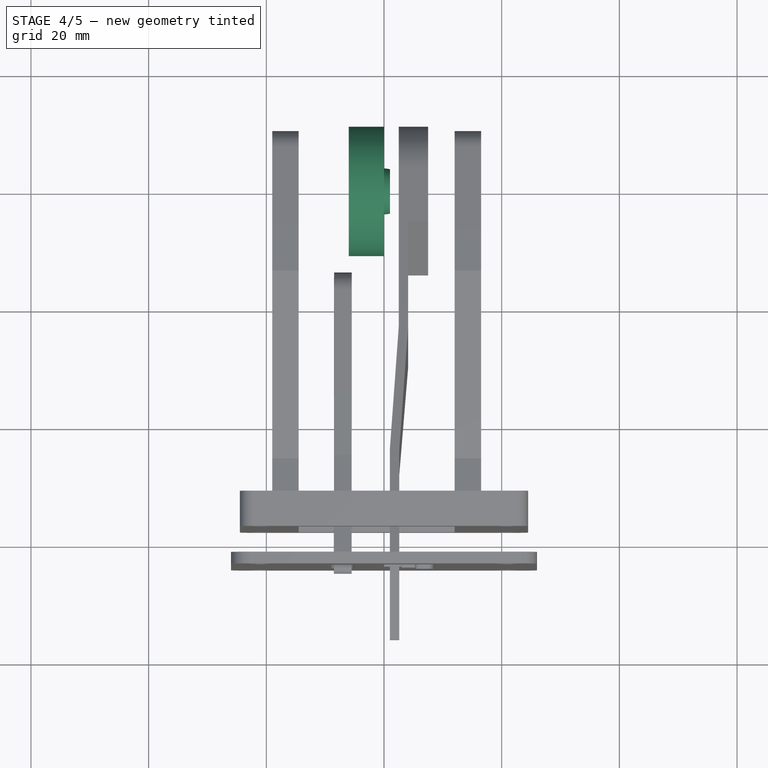
[diagram: stage 4 of 5 — top view after this stage's code; geometry added in this stage tinted green]
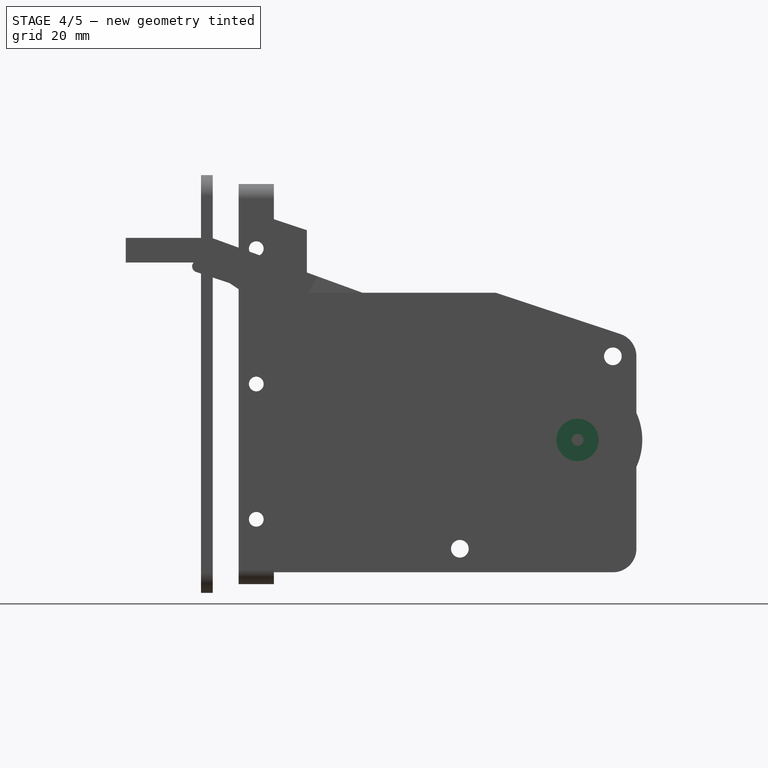
[diagram: stage 4 of 5 — right view after this stage's code; geometry added in this stage tinted green]
FEATURE [Part::Part2DObjectPython] Clone2D002  label="Export Sketch (servo)"  # Draft 2D object (typed FeaturePython)
  Objects = -> [Sketch004]
  Placement = pos=(-19,0,0) rot=(0,0,1;0rad)
  Scale = (1,1,1)
FEATURE [Part::Part2DObjectPython] Clone2D003  label="Export Sketch (right bracket) (2D)"  # Draft 2D object (typed FeaturePython)
  Objects = -> [Clone2D]
  Placement = pos=(16.5,0,0) rot=(0,0,1;0rad)
  Scale = (1,1,1)
FEATURE [Part::Part2DObjectPython] Clone2D004  label="Export Sketch (pot)"  # Draft 2D object (typed FeaturePython)
  Objects = -> [Sketch005]
  Placement = pos=(16.5,0,0) rot=(0,0,1;3.14159rad)
  Scale = (1,1,1)
FEATURE [Sketcher::SketchObject] Sketch010  label="Sketch (lever mount curve)"
  Placement = pos=(0,0,0) rot=(0.57735,-0.57735,-0.57735;2.0944rad)
  expr: Constraints[6] = 0.8
  sketch-geometry (11):
    g0: Circle CenterX=0 CenterY=0 CenterZ=0 NormalX=0 NormalY=0 NormalZ=1 Radius=11
    g1: ArcOfCircle CenterX=0 CenterY=0 CenterZ=0 NormalX=0 NormalY=0 NormalZ=1 Radius=3 StartAngle=0.133732 EndAngle=3.00786
    g2: ArcOfCircle CenterX=0 CenterY=0 CenterZ=0 NormalX=0 NormalY=0 NormalZ=1 Radius=3 StartAngle=3.27532 EndAngle=6.14945
    g3: LineSegment [constr] StartX=2.97321 StartY=0.4 StartZ=0 EndX=2.97321 EndY=-0.4 EndZ=0
    g4: LineSegment [constr] StartX=-2.97321 StartY=0.4 StartZ=0 EndX=-2.97321 EndY=-0.4 EndZ=0
    g5: LineSegment StartX=-2.97321 StartY=0.4 StartZ=0 EndX=-1.97321 EndY=0.4 EndZ=0
    g6: LineSegment StartX=-1.97321 StartY=0.4 StartZ=0 EndX=-1.97321 EndY=-0.4 EndZ=0
    g7: LineSegment StartX=-1.97321 StartY=-0.4 StartZ=0 EndX=-2.97321 EndY=-0.4 EndZ=0
    g8: LineSegment StartX=2.97321 StartY=0.4 StartZ=0 EndX=1.97321 EndY=0.4 EndZ=0
    g9: LineSegment StartX=1.97321 StartY=0.4 StartZ=0 EndX=1.97321 EndY=-0.4 EndZ=0
    g10: LineSegment StartX=1.97321 StartY=-0.4 StartZ=0 EndX=2.97321 EndY=-0.4 EndZ=0
  constraints (29):
    c: Coincident(g0,g-1)
    c: Radius(g0) = 11
    c: Coincident(g1,g-1)
    c: Coincident(g2,g-1)
    c: Equal(g1,g2)
    c: Radius(g1) = 3
    c: DistanceY(g2,g1) = 0.8
    c: Coincident(g5,g1)
    c: Horizontal(g5)
    c: Coincident(g6,g5)
    c: Vertical(g6)
    c: Coincident(g7,g6)
    c: Coincident(g7,g2)
    c: Horizontal(g7)
    c: Coincident(g8,g1)
    c: Horizontal(g8)
    c: Coincident(g9,g8)
    c: Vertical(g9)
    c: Coincident(g10,g9)
    c: Coincident(g10,g2)
    c: Horizontal(g10)
    c: Coincident(g1,g3)
    c: Coincident(g2,g3)
    c: Coincident(g1,g4)
    c: Symmetric(g8,g9,g-1)
    c: Symmetric(g5,g6,g-1)
    c: Equal(g9,g6)
    c: Equal(g5,g8)
    c: DistanceX(g5,g5) = 1
FEATURE [PartDesign::Pad] Pad008  label="Pad (lever mount curve)"
  Length = 5
  Length2 = 100
  Placement = pos=(0,0,0) rot=(0.57735,-0.57735,-0.57735;2.0944rad)
  Sketch = -> Sketch010
  Type = 0
FEATURE [Sketcher::SketchObject] Sketch011
  Placement = pos=(-5,0,0) rot=(0.57735,-0.57735,-0.57735;2.0944rad)
  sketch-geometry (2):
    g0: Circle CenterX=0 CenterY=0 CenterZ=0 NormalX=0 NormalY=0 NormalZ=1 Radius=11
    g1: Circle CenterX=0 CenterY=0 CenterZ=0 NormalX=0 NormalY=0 NormalZ=1 Radius=1
  constraints (4):
    c: Radius(g0) = 11
    c: Coincident(g0,g-1)
    c: Coincident(g1,g-1)
    c: Radius(g1) = 1
FEATURE [PartDesign::Pad] Pad009
  Length = 1
  Length2 = 100
  Placement = pos=(-5,0,0) rot=(0.57735,-0.57735,-0.57735;2.0944rad)
  Sketch = -> Sketch011
  Type = 0
FEATURE [Part::MultiFuse] Fusion
  Shapes = -> [Pad008,Pad009]
FEATURE [Part::Sphere] Sphere
  Angle1 = -90
  Angle2 = 15
  Angle3 = 360
  Placement = pos=(0,0,0) rot=(0,1,0;1.5708rad)
  Radius = 3.9
FEATURE [Sketcher::SketchObject] Sketch017  label="Sketch (pot shaft)"
  Placement = pos=(1.00939,0,0) rot=(0,1,0;1.5708rad)
  Support = -> Sphere [Face2]
  sketch-geometry (1):
    g0: Circle CenterX=0 CenterY=0 CenterZ=0 NormalX=0 NormalY=0 NormalZ=1 Radius=3
  constraints (2):
    c: Coincident(g0,g-1)
    c: Radius(g0) = 3
FEATURE [PartDesign::Pocket] Pocket002  label="Pocket (pot shaft)"
  Length = 5
  Placement = pos=(0,0,0) rot=(0,1,0;1.5708rad)
  Sketch = -> Sketch017
  Type = 1
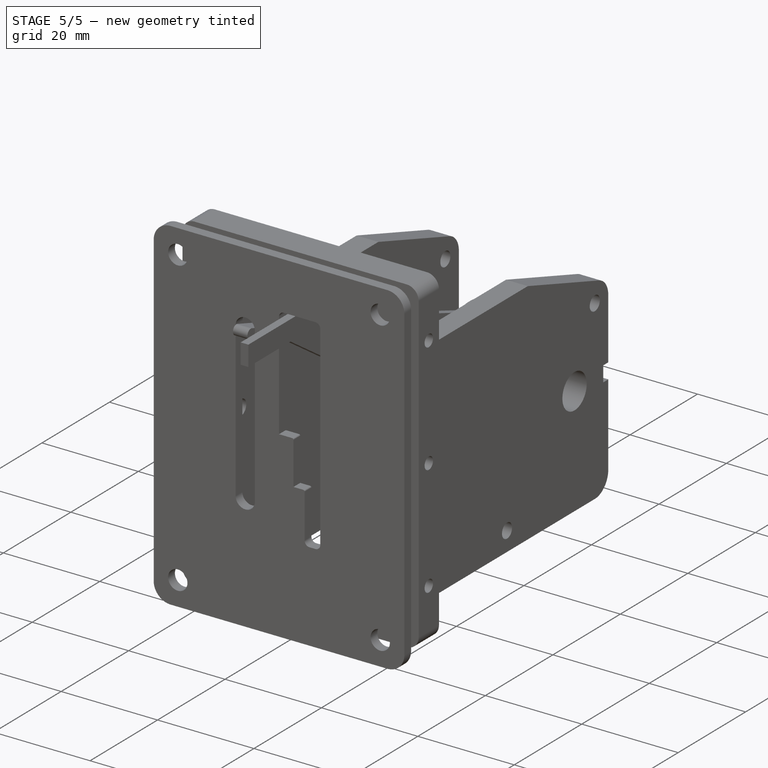
[diagram: stage 5 of 5 — iso view after this stage's code; geometry added in this stage tinted green]
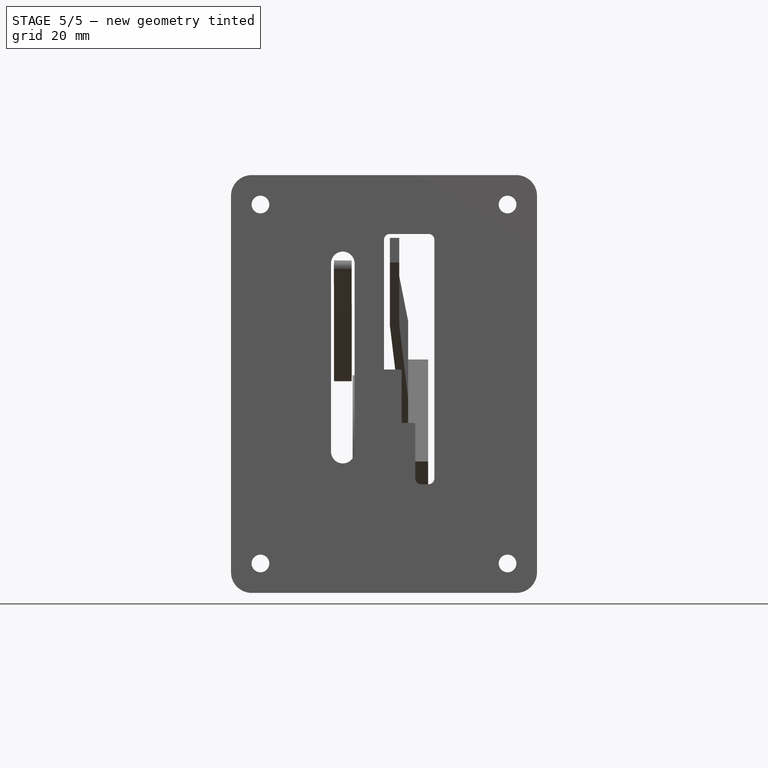
[diagram: stage 5 of 5 — front view after this stage's code; geometry added in this stage tinted green]
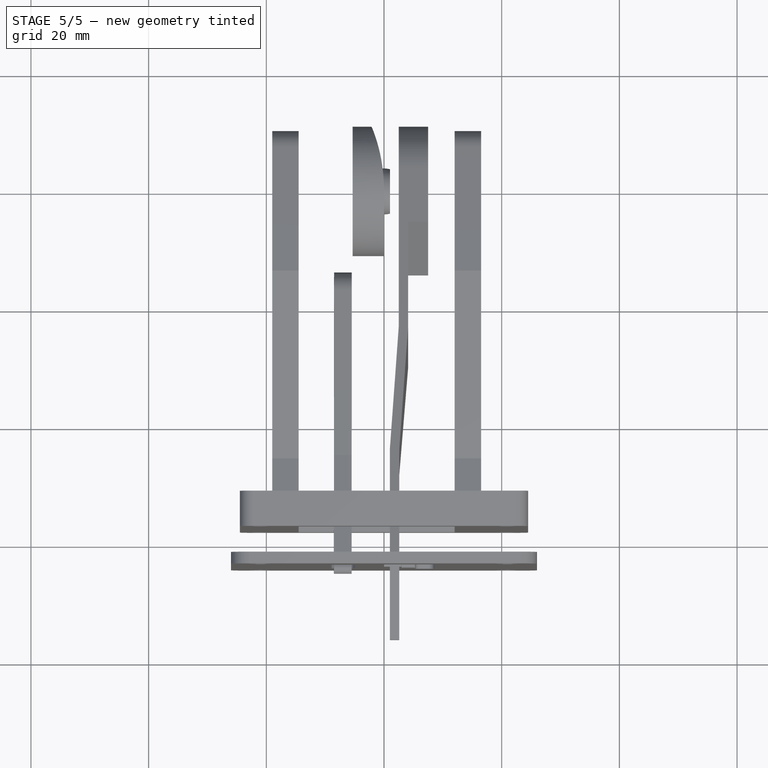
[diagram: stage 5 of 5 — top view after this stage's code; geometry added in this stage tinted green]
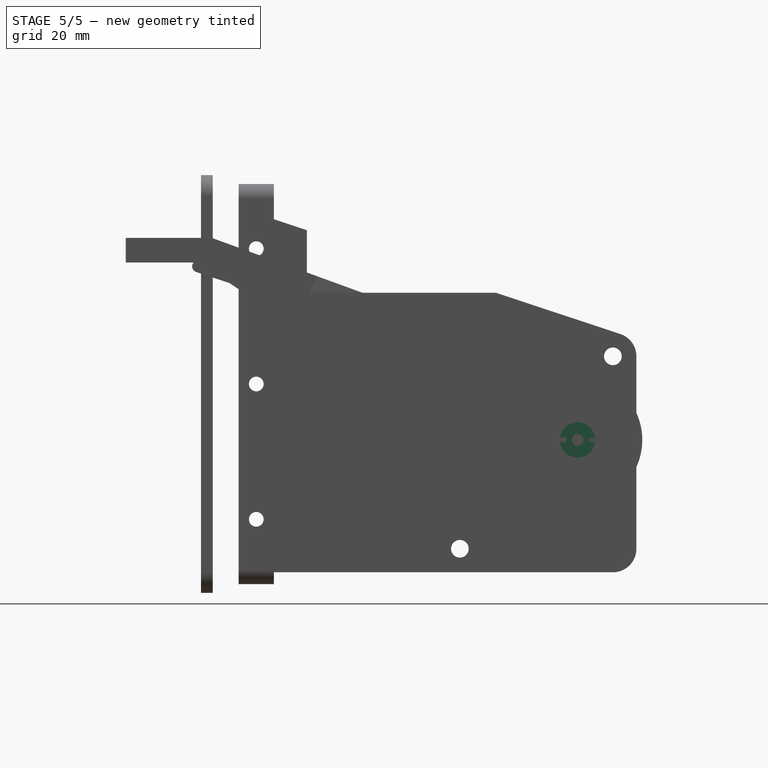
[diagram: stage 5 of 5 — right view after this stage's code; geometry added in this stage tinted green]
FEATURE [Sketcher::SketchObject] Sketch014
  sketch-geometry (5):
    g0: ArcOfCircle CenterX=-29.6729 CenterY=0 CenterZ=0 NormalX=0 NormalY=0 NormalZ=1 Radius=29.6729 StartAngle=0 EndAngle=0.400774
    g1: LineSegment StartX=-2.35131 StartY=11.5763 StartZ=0 EndX=-5.3411 EndY=11.5763 EndZ=0
    g2: LineSegment StartX=-5.3411 StartY=11.5763 StartZ=0 EndX=-5.3411 EndY=-11.4072 EndZ=0
    g3: LineSegment StartX=-5.3411 StartY=-11.4072 StartZ=0 EndX=0 EndY=-11.4072 EndZ=0
    g4: LineSegment StartX=0 StartY=-11.4072 StartZ=0 EndX=0 EndY=0 EndZ=0
  constraints (11):
    c: PointOnObject(g0,g-1)
    c: Coincident(g0,g-1)
    c: Coincident(g1,g0)
    c: Horizontal(g1)
    c: Coincident(g2,g1)
    c: Vertical(g2)
    c: Coincident(g3,g2)
    c: Horizontal(g3)
    c: Coincident(g4,g3)
    c: Coincident(g4,g-1)
    c: Vertical(g4)
FEATURE [PartDesign::Pad] Pad011  label="Pad (slope cut)"
  Length = 12
  Length2 = 12
  Sketch = -> Sketch014
  Type = 4
FEATURE [Sketcher::SketchObject] Sketch015
  Placement = pos=(-3,0,0) rot=(0.57735,-0.57735,-0.57735;2.0944rad)
  sketch-geometry (2):
    g0: Circle CenterX=0 CenterY=0 CenterZ=0 NormalX=0 NormalY=0 NormalZ=1 Radius=11
    g1: Circle CenterX=0 CenterY=0 CenterZ=0 NormalX=0 NormalY=0 NormalZ=1 Radius=1
  constraints (4):
    c: Radius(g0) = 11
    c: Coincident(g0,g-1)
    c: Coincident(g1,g-1)
    c: Radius(g1) = 1
FEATURE [PartDesign::Pad] Pad012
  Length = 2
  Length2 = 100
  Placement = pos=(-3,0,0) rot=(0.57735,-0.57735,-0.57735;2.0944rad)
  Sketch = -> Sketch015
  Type = 0
FEATURE [Part::MultiCommon] Common
  Shapes = -> [Pad011,Fusion]
FEATURE [Sketcher::SketchObject] Sketch016  label="Sketch (lever mount holes)"
  Placement = pos=(-5.3411,0,0) rot=(0.57735,-0.57735,-0.57735;2.0944rad)
  Support = -> Common [Face14]
  sketch-geometry (14):
    g0: Circle [constr] CenterX=0 CenterY=0 CenterZ=0 NormalX=0 NormalY=0 NormalZ=1 Radius=11
    g1: ArcOfCircle CenterX=6 CenterY=0 CenterZ=0 NormalX=0 NormalY=0 NormalZ=1 Radius=1.65 StartAngle=1.5708 EndAngle=4.71239
    g2: ArcOfCircle CenterX=8 CenterY=0 CenterZ=0 NormalX=0 NormalY=0 NormalZ=1 Radius=1.65 StartAngle=4.71239 EndAngle=7.85398
    g3: LineSegment StartX=6 StartY=-1.65 StartZ=0 EndX=8 EndY=-1.65 EndZ=0
    g4: LineSegment StartX=6 StartY=1.65 StartZ=0 EndX=8 EndY=1.65 EndZ=0
    g5: ArcOfCircle CenterX=-8 CenterY=0 CenterZ=0 NormalX=0 NormalY=0 NormalZ=1 Radius=1.65 StartAngle=1.5708 EndAngle=4.71239
    g6: ArcOfCircle CenterX=-6 CenterY=0 CenterZ=0 NormalX=0 NormalY=0 NormalZ=1 Radius=1.65 StartAngle=4.71239 EndAngle=7.85398
    g7: LineSegment StartX=-8 StartY=-1.65 StartZ=0 EndX=-6 EndY=-1.65 EndZ=0
    g8: LineSegment StartX=-8 StartY=1.65 StartZ=0 EndX=-6 EndY=1.65 EndZ=0
    g9: LineSegment [constr] StartX=-9.65 StartY=0 StartZ=0 EndX=-11 EndY=0 EndZ=0
    g10: LineSegment [constr] StartX=9.65 StartY=0 StartZ=0 EndX=11 EndY=0 EndZ=0
    g11: LineSegment [constr] StartX=-3 StartY=0 StartZ=0 EndX=-4.35 EndY=0 EndZ=0
    g12: LineSegment [constr] StartX=3 StartY=0 StartZ=0 EndX=4.35 EndY=0 EndZ=0
    g13: Circle [constr] CenterX=0 CenterY=0 CenterZ=0 NormalX=0 NormalY=0 NormalZ=1 Radius=3
  constraints (41):
    c: Radius(g0) = 11
    c: Tangent(g1,g4) = 1.5708
    c: Tangent(g1,g3) = -1.5708
    c: Tangent(g3,g2) = -1.5708
    c: Tangent(g4,g2) = 1.5708
    c: Horizontal(g3)
    c: Equal(g1,g2)
    c: PointOnObject(g1,g-1)
    c: Tangent(g5,g8) = 1.5708
    c: Tangent(g5,g7) = -1.5708
    c: Tangent(g7,g6) = -1.5708
    c: Tangent(g8,g6) = 1.5708
    c: Horizontal(g7)
    c: Equal(g5,g6)
    c: PointOnObject(g5,g-1)
    c: Equal(g2,g6)
    c: Radius(g2) = 1.65
    c: Equal(g8,g4)
    c: Horizontal(g9)
    c: PointOnObject(g9,g-1)
    c: PointOnObject(g9,g5)
    c: PointOnObject(g10,g2)
    c: Horizontal(g10)
    c: PointOnObject(g10,g0)
    c: PointOnObject(g10,g-1)
    c: Equal(g9,g10)
    c: Horizontal(g11)
    c: Horizontal(g12)
    c: PointOnObject(g12,g-1)
    c: PointOnObject(g12,g1)
    c: PointOnObject(g11,g-1)
    c: PointOnObject(g11,g6)
    c: Equal(g11,g9)
    c: Equal(g9,g12)
    c: Equal(g12,g10)
    c: DistanceX(g5,g6) = 2
    c: Coincident(g13,g-1)
    c: PointOnObject(g11,g13)
    c: PointOnObject(g12,g13)
    c: Coincident(g0,g-1)
    c: Radius(g13) = 3
FEATURE [PartDesign::Pocket] Pocket001  label="Pocket (lever mount holes)"
  Length = 5
  Sketch = -> Sketch016
  Type = 1
FEATURE [Part::MultiFuse] Fusion001  label="Fusion (lever mount)"
  Shapes = -> [Pocket001,Pocket002]
FEATURE [App::DocumentObjectGroup] Group001  label="Lever Mount"
  Group = -> [Common,Pad012,Sphere,Fusion001]
FEATURE [App::DocumentObjectGroup] Group002  label="Position Indicator"
  Group = -> [Pocket003,Pocket004,Pad013]
FEATURE [App::DocumentObjectGroup] Group003  label="Face Plate"
  Group = -> [Pad003]
FEATURE [App::DocumentObjectGroup] Group004  label="Frame"
  Group = -> [Cut001,Cut002,Pad007,Pocket]
FEATURE [App::DocumentObjectGroup] Group005  label="Lever (for reference only)"
  Group = -> [Cut]
FEATURE [App::DocumentObjectGroup] Group006  label="Left"
FEATURE [App::DocumentObjectGroup] Group007  label="Right"
  Group = -> [Clone2D003,Clone2D004]
FEATURE [App::DocumentObjectGroup] Group  label="Exported Sketches"
  Group = -> [Clone2D001,Clone2D002,Group006,Group007]
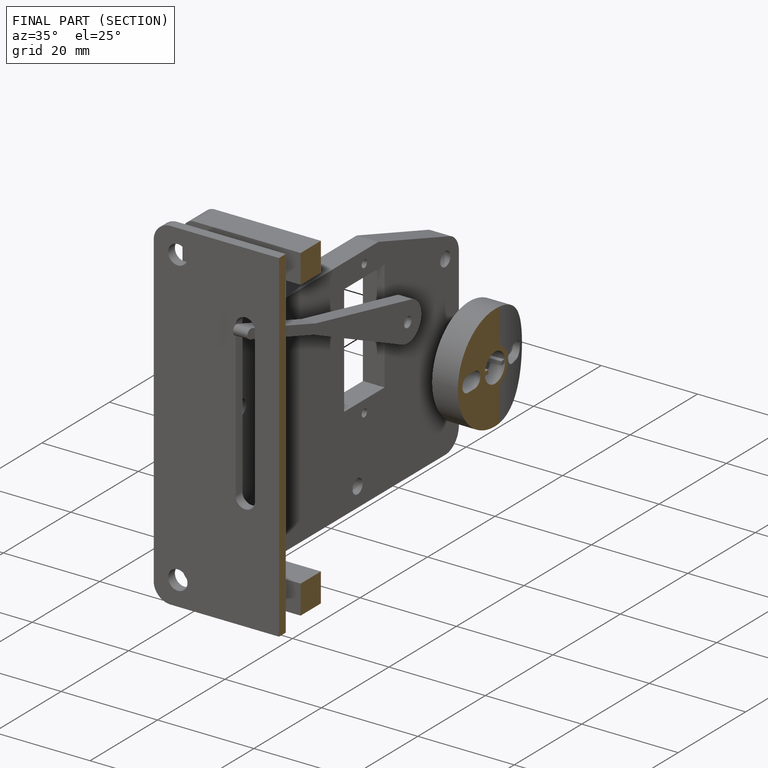
[diagram: finished part — half-section view (interior)]
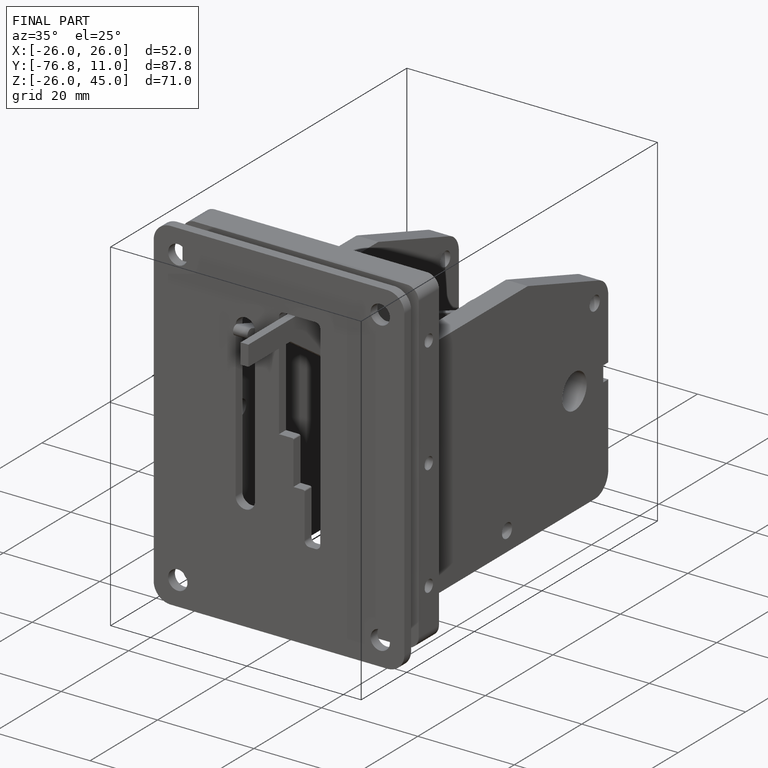
[diagram: finished part — iso view with bounding-box wireframe]
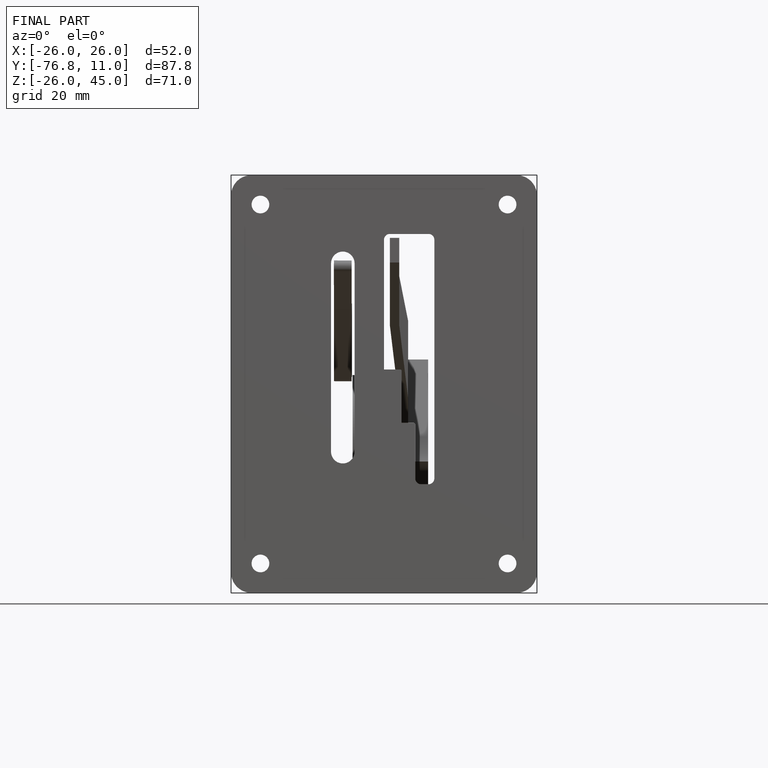
[diagram: finished part — front view with bounding-box wireframe]
